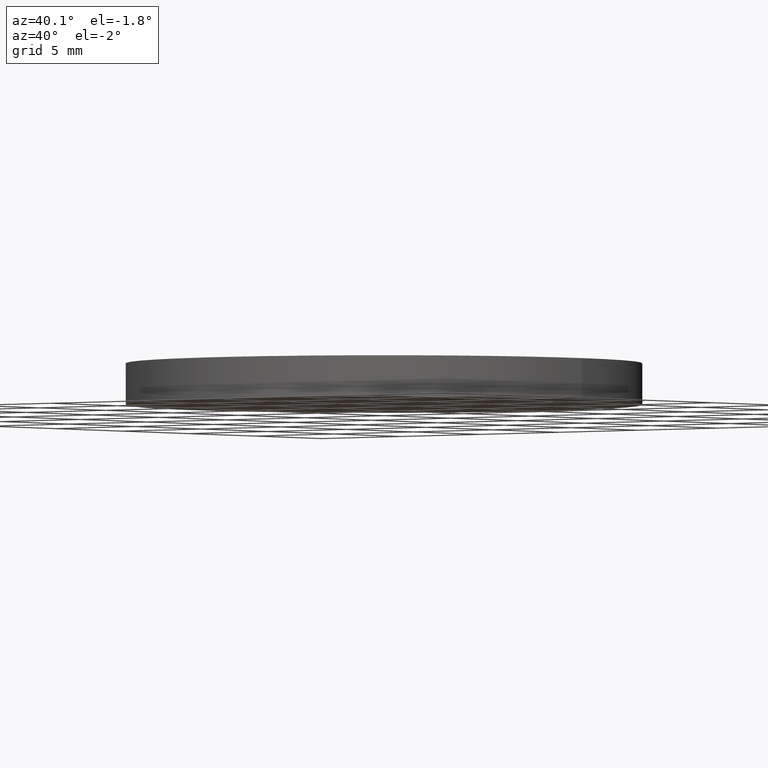
[diagram: clean part render]
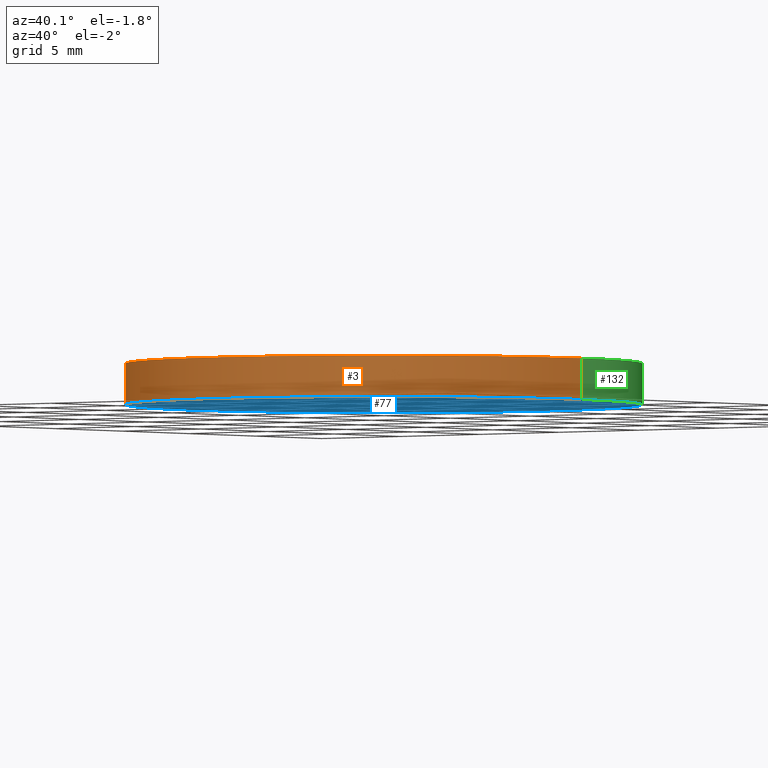
[diagram: same view with three faces highlighted in distinct colors, each labeled with its STEP entity id]
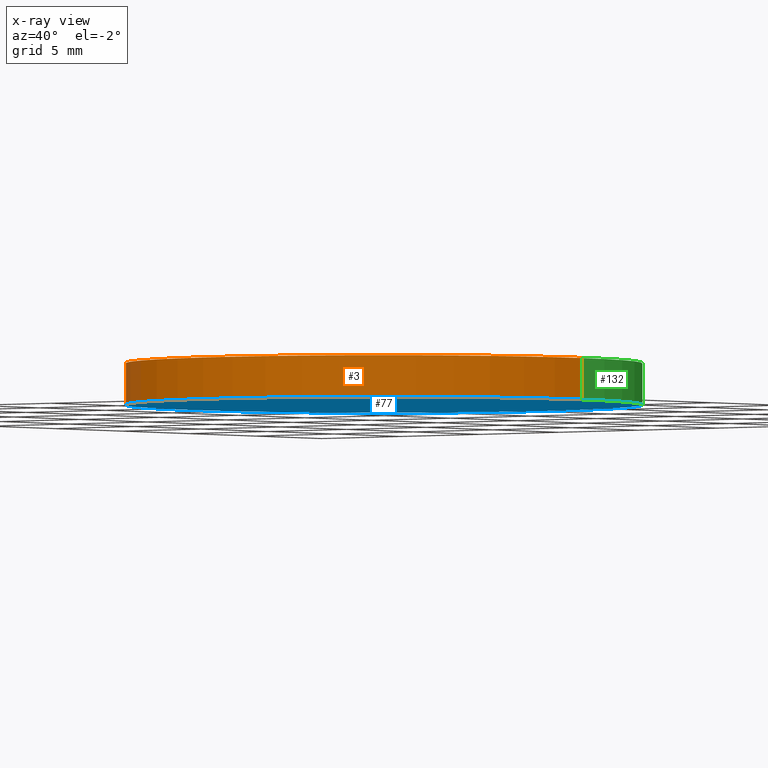
[diagram: x-ray of the same camera — body ghosted, the three highlighted faces saturated]
A machine part, auxiliary view with three faces highlighted in distinct colors.
The next image is the same camera in x-ray (body ghosted, the three faces saturated) — at least one of them is partly hidden behind the body in this view.
Their STEP definitions:

[orange] entity #3 — the highlighted cylindrical surface (partial cylindrical patch) has radius 12.5 mm, axis along (-0, -0, -1).
#1 = CIRCLE ( 'NONE', #61, 12.50000000000000000 ) ;
#2 = CARTESIAN_POINT ( 'NONE',  ( 0.0000000000000000000, 0.0000000000000000000, 0.0000000000000000000 ) ) ;
#3 = ADVANCED_FACE ( 'NONE', ( #124 ), #15, .T. ) ;
#6 = VECTOR ( 'NONE', #76, 1000.000000000000000 ) ;
#7 = DIRECTION ( 'NONE',  ( -0.0000000000000000000, -0.0000000000000000000, -1.000000000000000000 ) ) ;
#11 = ORIENTED_EDGE ( 'NONE', *, *, #38, .F. ) ;
#15 = CYLINDRICAL_SURFACE ( 'NONE', #86, 12.50000000000000000 ) ;
#16 = CARTESIAN_POINT ( 'NONE',  ( -12.50000000000000000, 0.0000000000000000000, 2.000000000000000000 ) ) ;
#18 = CARTESIAN_POINT ( 'NONE',  ( 0.0000000000000000000, 0.0000000000000000000, 2.000000000000000000 ) ) ;
#24 = DIRECTION ( 'NONE',  ( 0.0000000000000000000, 0.0000000000000000000, 1.000000000000000000 ) ) ;
#31 = CARTESIAN_POINT ( 'NONE',  ( 12.50000000000000000, 1.530808498934191500E-015, 0.0000000000000000000 ) ) ;
#33 = VERTEX_POINT ( 'NONE', #83 ) ;
#38 = EDGE_CURVE ( 'NONE', #33, #81, #91, .T. ) ;
#43 = ORIENTED_EDGE ( 'NONE', *, *, #129, .T. ) ;
#49 = VECTOR ( 'NONE', #97, 1000.000000000000000 ) ;
#57 = DIRECTION ( 'NONE',  ( 0.0000000000000000000, 0.0000000000000000000, 1.000000000000000000 ) ) ;
#61 = AXIS2_PLACEMENT_3D ( 'NONE', #2, #57, #131 ) ;
#67 = ORIENTED_EDGE ( 'NONE', *, *, #88, .T. ) ;
#71 = DIRECTION ( 'NONE',  ( 1.000000000000000000, 0.0000000000000000000, 0.0000000000000000000 ) ) ;
#74 = LINE ( 'NONE', #115, #49 ) ;
#76 = DIRECTION ( 'NONE',  ( -0.0000000000000000000, -0.0000000000000000000, -1.000000000000000000 ) ) ;
#80 = LINE ( 'NONE', #16, #6 ) ;
#81 = VERTEX_POINT ( 'NONE', #121 ) ;
#83 = CARTESIAN_POINT ( 'NONE',  ( -12.50000000000000000, 0.0000000000000000000, 2.000000000000000000 ) ) ;
#84 = VERTEX_POINT ( 'NONE', #31 ) ;
#86 = AXIS2_PLACEMENT_3D ( 'NONE', #18, #7, #135 ) ;
#88 = EDGE_CURVE ( 'NONE', #105, #84, #1, .T. ) ;
#91 = CIRCLE ( 'NONE', #95, 12.50000000000000000 ) ;
#95 = AXIS2_PLACEMENT_3D ( 'NONE', #96, #24, #71 ) ;
#96 = CARTESIAN_POINT ( 'NONE',  ( 0.0000000000000000000, 0.0000000000000000000, 2.000000000000000000 ) ) ;
#97 = DIRECTION ( 'NONE',  ( -0.0000000000000000000, -0.0000000000000000000, -1.000000000000000000 ) ) ;
#99 = CARTESIAN_POINT ( 'NONE',  ( -12.50000000000000000, 0.0000000000000000000, 0.0000000000000000000 ) ) ;
#105 = VERTEX_POINT ( 'NONE', #99 ) ;
#115 = CARTESIAN_POINT ( 'NONE',  ( 12.50000000000000000, 1.530808498934191500E-015, 2.000000000000000000 ) ) ;
#116 = ORIENTED_EDGE ( 'NONE', *, *, #139, .F. ) ;
#117 = EDGE_LOOP ( 'NONE', ( #116, #11, #43, #67 ) ) ;
#121 = CARTESIAN_POINT ( 'NONE',  ( 12.50000000000000000, 1.530808498934191500E-015, 2.000000000000000000 ) ) ;
#124 = FACE_OUTER_BOUND ( 'NONE', #117, .T. ) ;
#129 = EDGE_CURVE ( 'NONE', #33, #105, #80, .T. ) ;
#131 = DIRECTION ( 'NONE',  ( 1.000000000000000000, 0.0000000000000000000, 0.0000000000000000000 ) ) ;
#135 = DIRECTION ( 'NONE',  ( -1.000000000000000000, 0.0000000000000000000, 0.0000000000000000000 ) ) ;
#139 = EDGE_CURVE ( 'NONE', #81, #84, #74, .T. ) ;

[blue] entity #77 — the highlighted planar face has unit normal (0, 0, 1).
#1 = CIRCLE ( 'NONE', #61, 12.50000000000000000 ) ;
#2 = CARTESIAN_POINT ( 'NONE',  ( 0.0000000000000000000, 0.0000000000000000000, 0.0000000000000000000 ) ) ;
#12 = ORIENTED_EDGE ( 'NONE', *, *, #88, .F. ) ;
#22 = DIRECTION ( 'NONE',  ( 1.000000000000000000, 0.0000000000000000000, 0.0000000000000000000 ) ) ;
#23 = PLANE ( 'NONE',  #108 ) ;
#28 = EDGE_LOOP ( 'NONE', ( #12, #36 ) ) ;
#30 = CARTESIAN_POINT ( 'NONE',  ( 0.0000000000000000000, 0.0000000000000000000, 0.0000000000000000000 ) ) ;
#31 = CARTESIAN_POINT ( 'NONE',  ( 12.50000000000000000, 1.530808498934191500E-015, 0.0000000000000000000 ) ) ;
#36 = ORIENTED_EDGE ( 'NONE', *, *, #112, .F. ) ;
#37 = CIRCLE ( 'NONE', #47, 12.50000000000000000 ) ;
#41 = DIRECTION ( 'NONE',  ( 1.000000000000000000, 0.0000000000000000000, -0.0000000000000000000 ) ) ;
#47 = AXIS2_PLACEMENT_3D ( 'NONE', #30, #94, #22 ) ;
#57 = DIRECTION ( 'NONE',  ( 0.0000000000000000000, 0.0000000000000000000, 1.000000000000000000 ) ) ;
#59 = DIRECTION ( 'NONE',  ( 0.0000000000000000000, 0.0000000000000000000, 1.000000000000000000 ) ) ;
#61 = AXIS2_PLACEMENT_3D ( 'NONE', #2, #57, #131 ) ;
#77 = ADVANCED_FACE ( 'NONE', ( #119 ), #23, .F. ) ;
#84 = VERTEX_POINT ( 'NONE', #31 ) ;
#88 = EDGE_CURVE ( 'NONE', #105, #84, #1, .T. ) ;
#94 = DIRECTION ( 'NONE',  ( 0.0000000000000000000, 0.0000000000000000000, 1.000000000000000000 ) ) ;
#99 = CARTESIAN_POINT ( 'NONE',  ( -12.50000000000000000, 0.0000000000000000000, 0.0000000000000000000 ) ) ;
#105 = VERTEX_POINT ( 'NONE', #99 ) ;
#107 = CARTESIAN_POINT ( 'NONE',  ( 0.0000000000000000000, 0.0000000000000000000, 0.0000000000000000000 ) ) ;
#108 = AXIS2_PLACEMENT_3D ( 'NONE', #107, #59, #41 ) ;
#112 = EDGE_CURVE ( 'NONE', #84, #105, #37, .T. ) ;
#119 = FACE_OUTER_BOUND ( 'NONE', #28, .T. ) ;
#131 = DIRECTION ( 'NONE',  ( 1.000000000000000000, 0.0000000000000000000, 0.0000000000000000000 ) ) ;

[green] entity #132 — the highlighted cylindrical surface (partial cylindrical patch) has radius 12.5 mm, axis along (-0, -0, -1).
#4 = AXIS2_PLACEMENT_3D ( 'NONE', #65, #5, #34 ) ;
#5 = DIRECTION ( 'NONE',  ( 0.0000000000000000000, 0.0000000000000000000, 1.000000000000000000 ) ) ;
#6 = VECTOR ( 'NONE', #76, 1000.000000000000000 ) ;
#8 = ORIENTED_EDGE ( 'NONE', *, *, #120, .F. ) ;
#13 = ORIENTED_EDGE ( 'NONE', *, *, #139, .T. ) ;
#16 = CARTESIAN_POINT ( 'NONE',  ( -12.50000000000000000, 0.0000000000000000000, 2.000000000000000000 ) ) ;
#22 = DIRECTION ( 'NONE',  ( 1.000000000000000000, 0.0000000000000000000, 0.0000000000000000000 ) ) ;
#27 = CIRCLE ( 'NONE', #4, 12.50000000000000000 ) ;
#30 = CARTESIAN_POINT ( 'NONE',  ( 0.0000000000000000000, 0.0000000000000000000, 0.0000000000000000000 ) ) ;
#31 = CARTESIAN_POINT ( 'NONE',  ( 12.50000000000000000, 1.530808498934191500E-015, 0.0000000000000000000 ) ) ;
#33 = VERTEX_POINT ( 'NONE', #83 ) ;
#34 = DIRECTION ( 'NONE',  ( 1.000000000000000000, 0.0000000000000000000, 0.0000000000000000000 ) ) ;
#35 = FACE_OUTER_BOUND ( 'NONE', #89, .T. ) ;
#37 = CIRCLE ( 'NONE', #47, 12.50000000000000000 ) ;
#39 = CARTESIAN_POINT ( 'NONE',  ( 0.0000000000000000000, 0.0000000000000000000, 2.000000000000000000 ) ) ;
#47 = AXIS2_PLACEMENT_3D ( 'NONE', #30, #94, #22 ) ;
#48 = ORIENTED_EDGE ( 'NONE', *, *, #129, .F. ) ;
#49 = VECTOR ( 'NONE', #97, 1000.000000000000000 ) ;
#58 = DIRECTION ( 'NONE',  ( -0.0000000000000000000, -0.0000000000000000000, -1.000000000000000000 ) ) ;
#65 = CARTESIAN_POINT ( 'NONE',  ( 0.0000000000000000000, 0.0000000000000000000, 2.000000000000000000 ) ) ;
#70 = CYLINDRICAL_SURFACE ( 'NONE', #92, 12.50000000000000000 ) ;
#74 = LINE ( 'NONE', #115, #49 ) ;
#75 = DIRECTION ( 'NONE',  ( -1.000000000000000000, 0.0000000000000000000, 0.0000000000000000000 ) ) ;
#76 = DIRECTION ( 'NONE',  ( -0.0000000000000000000, -0.0000000000000000000, -1.000000000000000000 ) ) ;
#80 = LINE ( 'NONE', #16, #6 ) ;
#81 = VERTEX_POINT ( 'NONE', #121 ) ;
#83 = CARTESIAN_POINT ( 'NONE',  ( -12.50000000000000000, 0.0000000000000000000, 2.000000000000000000 ) ) ;
#84 = VERTEX_POINT ( 'NONE', #31 ) ;
#89 = EDGE_LOOP ( 'NONE', ( #8, #13, #122, #48 ) ) ;
#92 = AXIS2_PLACEMENT_3D ( 'NONE', #39, #58, #75 ) ;
#94 = DIRECTION ( 'NONE',  ( 0.0000000000000000000, 0.0000000000000000000, 1.000000000000000000 ) ) ;
#97 = DIRECTION ( 'NONE',  ( -0.0000000000000000000, -0.0000000000000000000, -1.000000000000000000 ) ) ;
#99 = CARTESIAN_POINT ( 'NONE',  ( -12.50000000000000000, 0.0000000000000000000, 0.0000000000000000000 ) ) ;
#105 = VERTEX_POINT ( 'NONE', #99 ) ;
#112 = EDGE_CURVE ( 'NONE', #84, #105, #37, .T. ) ;
#115 = CARTESIAN_POINT ( 'NONE',  ( 12.50000000000000000, 1.530808498934191500E-015, 2.000000000000000000 ) ) ;
#120 = EDGE_CURVE ( 'NONE', #81, #33, #27, .T. ) ;
#121 = CARTESIAN_POINT ( 'NONE',  ( 12.50000000000000000, 1.530808498934191500E-015, 2.000000000000000000 ) ) ;
#122 = ORIENTED_EDGE ( 'NONE', *, *, #112, .T. ) ;
#129 = EDGE_CURVE ( 'NONE', #33, #105, #80, .T. ) ;
#132 = ADVANCED_FACE ( 'NONE', ( #35 ), #70, .T. ) ;
#139 = EDGE_CURVE ( 'NONE', #81, #84, #74, .T. ) ;